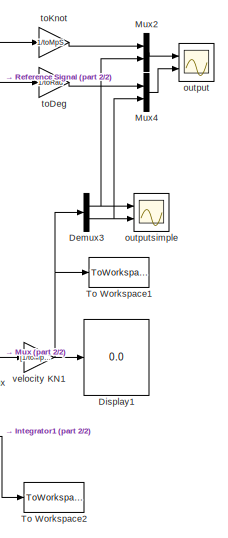
[diagram: root canvas - part 1/2, right side, full height]
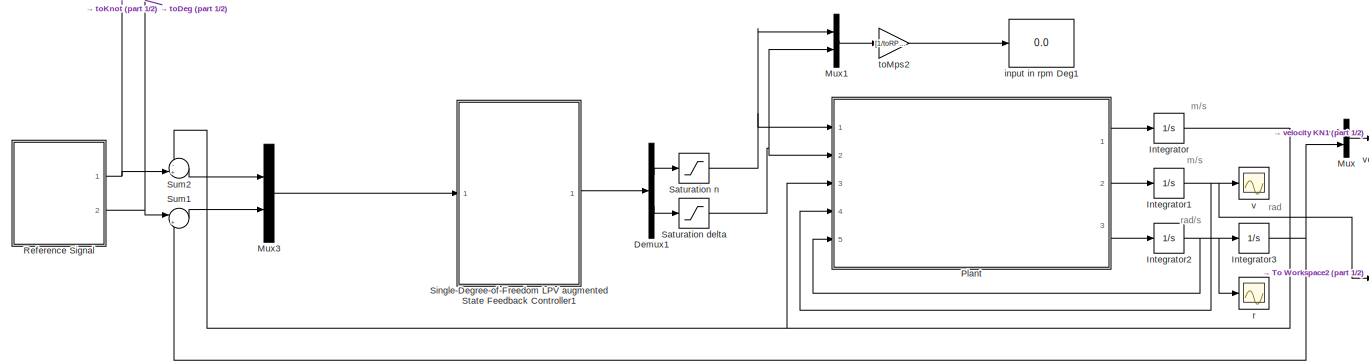
[diagram: root canvas - part 2/2, full width, bottom band]
MODEL slx_d1ff3ff3838d
KIND model
CONFIG AbsTol = auto
CONFIG EnableMultiTasking = off
CONFIG FixedStep = 0.1
CONFIG MaxStep = auto
CONFIG MinStep = auto
CONFIG PostLoadFcn = load Classic_data_2017-11-06_16-06.mat\nload Trajectory_data_Cux_Visby.rtz2017-11-16_14-55.mat
CONFIG RelTol = 1e-3
CONFIG SampleTimeConstraint = Unconstrained
CONFIG Solver = FixedStepAuto
CONFIG SolverName = FixedStepAuto
CONFIG StartTime = 0.0
CONFIG StopTime = time(end)
BLOCK [Demux] Demux1
  DisplayOption = bar
  Outputs = 2
  Ports = [1, 2]
BLOCK [Demux] Demux3
  DisplayOption = bar
  Outputs = 2
  Ports = [1, 2]
BLOCK [Display] Display1
  Decimation = 1
  Ports = [1]
BLOCK [Integrator] Integrator
  InitialCondition = 0.1*toMpS
  LowerSaturationLimit = 1e-1*toMpS
  Ports = [1, 1]
  UpperSaturationLimit = 16*toMpS
BLOCK [Integrator] Integrator1
  LowerSaturationLimit = -0.001*toMpS
  Ports = [1, 1]
  UpperSaturationLimit = 0*toMpS
BLOCK [Integrator] Integrator2
  Ports = [1, 1]
BLOCK [Integrator] Integrator3
  Ports = [1, 1]
  WrapState = on
  WrappedStateLowerValue = -180*toRad
  WrappedStateUpperValue = 180*toRad
BLOCK [Mux] Mux
  DisplayOption = bar
  Inputs = 2
  Ports = [2, 1]
BLOCK [Mux] Mux1
  DisplayOption = bar
  Inputs = 2
  Ports = [2, 1]
BLOCK [Mux] Mux2
  DisplayOption = bar
  Inputs = 2
  Ports = [2, 1]
BLOCK [Mux] Mux3
  DisplayOption = bar
  Inputs = 2
  Ports = [2, 1]
BLOCK [Mux] Mux4
  DisplayOption = bar
  Inputs = 2
  Ports = [2, 1]
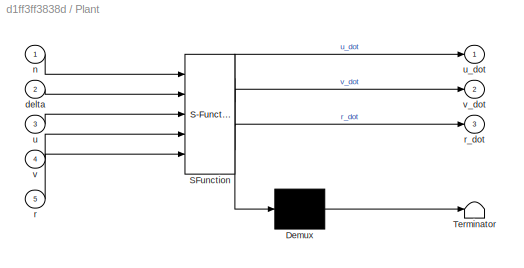
BLOCK [SubSystem] Plant
  ErrorFcn = Stateflow.Translate.translate
  PermitHierarchicalResolution = ExplicitOnly
  Ports = [5, 3]
  RequestExecContextInheritance = off
  SFBlockType = MATLAB Function
  TreatAsAtomicUnit = on
  Variant = off
BLOCK [Demux] Plant/ Demux 
  Outputs = 1
  Ports = [1, 1]
BLOCK [S-Function] Plant/ SFunction 
  EnableBusSupport = on
  FunctionName = sf_sfun
  PortCounts = [5 4]
  Ports = [5, 4]
  SFcnIsStateOwnerBlock = off
  SFunctionDeploymentMode = off
  Tag = Stateflow S-Function SimClassic 2
BLOCK [Terminator] Plant/ Terminator 
BLOCK [Inport] Plant/delta
  IconDisplay = Port number
  Port = 2
BLOCK [Inport] Plant/n
  IconDisplay = Port number
BLOCK [Inport] Plant/r
  IconDisplay = Port number
  Port = 5
BLOCK [Outport] Plant/r_dot
  IconDisplay = Port number
  Port = 3
BLOCK [Inport] Plant/u
  IconDisplay = Port number
  Port = 3
BLOCK [Outport] Plant/u_dot
  IconDisplay = Port number
BLOCK [Inport] Plant/v
  IconDisplay = Port number
  Port = 4
BLOCK [Outport] Plant/v_dot
  IconDisplay = Port number
  Port = 2
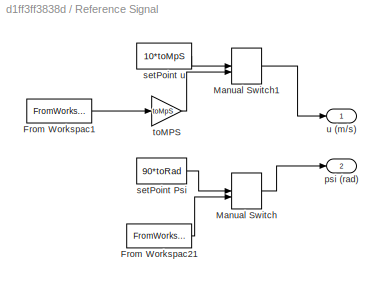
BLOCK [SubSystem] Reference Signal
  Ports = [0, 2]
  RequestExecContextInheritance = off
  Variant = off
BLOCK [FromWorkspace] Reference Signal/From Workspac1
  Interpolate = off
  OutputAfterFinalValue = Holding final value
  SampleTime = 0
  VariableName = [time ref_u]
BLOCK [FromWorkspace] Reference Signal/From Workspac21
  Interpolate = off
  OutputAfterFinalValue = Holding final value
  SampleTime = 0
  VariableName = [time ref_psi]
BLOCK [ManualSwitch] Reference Signal/Manual Switch
BLOCK [ManualSwitch] Reference Signal/Manual Switch1
BLOCK [Outport] Reference Signal/psi (rad)
  IconDisplay = Port number
  Port = 2
BLOCK [Constant] Reference Signal/setPoint Psi
  Value = 90*toRad
BLOCK [Constant] Reference Signal/setPoint u
  Value = 10*toMpS
BLOCK [Gain] Reference Signal/toMPS
  Gain = toMpS
  OutDataTypeStr = Inherit: Inherit via internal rule
  ParamDataTypeStr = Inherit: Inherit via internal rule
  SaturateOnIntegerOverflow = off
BLOCK [Outport] Reference Signal/u (m//s)
  IconDisplay = Port number
BLOCK [Saturate] Saturation delta
  InputPortMap = u0
  LinearizeAsGain = off
  LowerLimit = -30*toRad
  Ports = [1, 1]
  UpperLimit = 30*toRad
BLOCK [Saturate] Saturation n
  InputPortMap = u0
  LinearizeAsGain = off
  LowerLimit = -90*toRPS
  Ports = [1, 1]
  UpperLimit = 90*toRPS
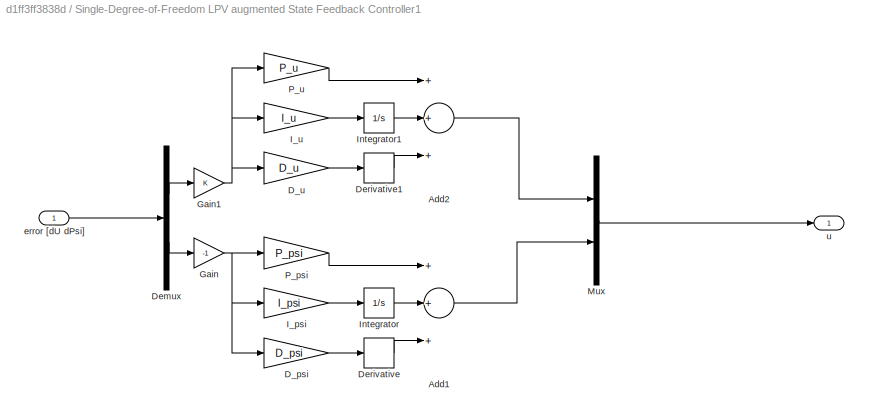
BLOCK [SubSystem] Single-Degree-of-Freedom LPV augmented State Feedback Controller1
  Ports = [1, 1]
  RequestExecContextInheritance = off
  Variant = off
BLOCK [Sum] Single-Degree-of-Freedom LPV augmented State Feedback Controller1/Add1
  InputSameDT = off
  Inputs = +++
  OutDataTypeStr = Inherit: Inherit via internal rule
  Ports = [3, 1]
  SaturateOnIntegerOverflow = off
BLOCK [Sum] Single-Degree-of-Freedom LPV augmented State Feedback Controller1/Add2
  InputSameDT = off
  Inputs = +++
  OutDataTypeStr = Inherit: Inherit via internal rule
  Ports = [3, 1]
  SaturateOnIntegerOverflow = off
BLOCK [Gain] Single-Degree-of-Freedom LPV augmented State Feedback Controller1/D_psi
  Gain = D_psi
  OutDataTypeStr = Inherit: Inherit via internal rule
  ParamDataTypeStr = Inherit: Inherit via internal rule
  SaturateOnIntegerOverflow = off
BLOCK [Gain] Single-Degree-of-Freedom LPV augmented State Feedback Controller1/D_u
  Gain = D_u
  OutDataTypeStr = Inherit: Inherit via internal rule
  ParamDataTypeStr = Inherit: Inherit via internal rule
  SaturateOnIntegerOverflow = off
BLOCK [Demux] Single-Degree-of-Freedom LPV augmented State Feedback Controller1/Demux
  DisplayOption = bar
  Outputs = 2
  Ports = [1, 2]
BLOCK [Derivative] Single-Degree-of-Freedom LPV augmented State Feedback Controller1/Derivative
BLOCK [Derivative] Single-Degree-of-Freedom LPV augmented State Feedback Controller1/Derivative1
BLOCK [Gain] Single-Degree-of-Freedom LPV augmented State Feedback Controller1/Gain
  Gain = -1
  OutDataTypeStr = Inherit: Inherit via internal rule
  ParamDataTypeStr = Inherit: Inherit via internal rule
  SaturateOnIntegerOverflow = off
BLOCK [Gain] Single-Degree-of-Freedom LPV augmented State Feedback Controller1/Gain1
  OutDataTypeStr = Inherit: Inherit via internal rule
  ParamDataTypeStr = Inherit: Inherit via internal rule
  SaturateOnIntegerOverflow = off
BLOCK [Gain] Single-Degree-of-Freedom LPV augmented State Feedback Controller1/I_psi
  Gain = I_psi
  OutDataTypeStr = Inherit: Inherit via internal rule
  ParamDataTypeStr = Inherit: Inherit via internal rule
  SaturateOnIntegerOverflow = off
BLOCK [Gain] Single-Degree-of-Freedom LPV augmented State Feedback Controller1/I_u
  Gain = I_u
  OutDataTypeStr = Inherit: Inherit via internal rule
  ParamDataTypeStr = Inherit: Inherit via internal rule
  SaturateOnIntegerOverflow = off
BLOCK [Integrator] Single-Degree-of-Freedom LPV augmented State Feedback Controller1/Integrator
  Ports = [1, 1]
BLOCK [Integrator] Single-Degree-of-Freedom LPV augmented State Feedback Controller1/Integrator1
  Ports = [1, 1]
BLOCK [Mux] Single-Degree-of-Freedom LPV augmented State Feedback Controller1/Mux
  DisplayOption = bar
  Inputs = 2
  Ports = [2, 1]
BLOCK [Gain] Single-Degree-of-Freedom LPV augmented State Feedback Controller1/P_psi
  Gain = P_psi
  OutDataTypeStr = Inherit: Inherit via internal rule
  ParamDataTypeStr = Inherit: Inherit via internal rule
  SaturateOnIntegerOverflow = off
BLOCK [Gain] Single-Degree-of-Freedom LPV augmented State Feedback Controller1/P_u
  Gain = P_u
  OutDataTypeStr = Inherit: Inherit via internal rule
  ParamDataTypeStr = Inherit: Inherit via internal rule
  SaturateOnIntegerOverflow = off
BLOCK [Inport] Single-Degree-of-Freedom LPV augmented State Feedback Controller1/error [dU dPsi]
  IconDisplay = Port number
BLOCK [Outport] Single-Degree-of-Freedom LPV augmented State Feedback Controller1/u
  IconDisplay = Port number
BLOCK [Sum] Sum1
  IconShape = round
  InputSameDT = off
  Inputs = |+-
  OutDataTypeStr = Inherit: Inherit via internal rule
  Ports = [2, 1]
  SaturateOnIntegerOverflow = off
BLOCK [Sum] Sum2
  IconShape = round
  InputSameDT = off
  Inputs = -+|
  OutDataTypeStr = Inherit: Inherit via internal rule
  Ports = [2, 1]
  SaturateOnIntegerOverflow = off
BLOCK [ToWorkspace] To Workspace1
  FixptAsFi = on
  MaxDataPoints = inf
  Ports = [1]
  SampleTime = -1
  SaveFormat = Timeseries
  VariableName = pid_out
BLOCK [ToWorkspace] To Workspace2
  FixptAsFi = on
  MaxDataPoints = inf
  Ports = [1]
  SampleTime = -1
  SaveFormat = Timeseries
  VariableName = pid_sway
BLOCK [Display] input in rpm Deg1
  Decimation = 1
  Ports = [1]
BLOCK [Scope] output
  NumInputPorts = 2
  Ports = [2]
  ScopeSpecificationString = Simulink.scopes.TimeScopeBlockCfg('CurrentConfiguration', extmgr.ConfigurationSet(extmgr.Configuration('Core','General UI',true,'FigureColor',[1 1 1]),extmgr.Configuration('Core','Source UI',true),extmgr.Configuration('Sources','WiredSimulink',true,'DataLoggingVariableName','ScopeData1'),extmgr.Configuration('Visuals','Time Domain',true,'PlotType','Line','SerializedDisplays',{struct('MinYLimReal',...<+3925ch>
BLOCK [Scope] outputsimple
  NumInputPorts = 2
  Ports = [2]
  ScopeSpecificationString = Simulink.scopes.TimeScopeBlockCfg('CurrentConfiguration', extmgr.ConfigurationSet(extmgr.Configuration('Core','General UI',true,'FigureColor',[1 1 1]),extmgr.Configuration('Core','Source UI',true),extmgr.Configuration('Sources','WiredSimulink',true,'DataLoggingVariableName','ScopeData1'),extmgr.Configuration('Visuals','Time Domain',true,'PlotType','Line','SerializedDisplays',{struct('MinYLimReal',...<+2372ch>
BLOCK [Scope] r
  NumInputPorts = 1
  Ports = [1]
  ScopeSpecificationString = Simulink.scopes.TimeScopeBlockCfg('CurrentConfiguration', extmgr.ConfigurationSet(extmgr.Configuration('Core','General UI',true),extmgr.Configuration('Core','Source UI',true),extmgr.Configuration('Sources','WiredSimulink',true,'DataLoggingVariableName','ScopeData2'),extmgr.Configuration('Visuals','Time Domain',true,'SerializedDisplays',{struct('MinYLimReal','-0.00079','MaxYLimReal','0.0071','YLabe...<+1409ch>
BLOCK [Gain] toDeg
  Gain = 1/toRad
  OutDataTypeStr = Inherit: Inherit via internal rule
  ParamDataTypeStr = Inherit: Inherit via internal rule
  SaturateOnIntegerOverflow = off
BLOCK [Gain] toKnot
  Gain = 1/toMpS
  OutDataTypeStr = Inherit: Inherit via internal rule
  ParamDataTypeStr = Inherit: Inherit via internal rule
  SaturateOnIntegerOverflow = off
BLOCK [Gain] toMps2
  Gain = [1/toRPS 1/toRad]
  OutDataTypeStr = Inherit: Inherit via internal rule
  ParamDataTypeStr = Inherit: Inherit via internal rule
  SaturateOnIntegerOverflow = off
BLOCK [Scope] v
  NumInputPorts = 1
  Ports = [1]
  ScopeSpecificationString = Simulink.scopes.TimeScopeBlockCfg('CurrentConfiguration', extmgr.ConfigurationSet(extmgr.Configuration('Core','General UI',true),extmgr.Configuration('Core','Source UI',true),extmgr.Configuration('Sources','WiredSimulink',true,'DataLoggingVariableName','ScopeData1'),extmgr.Configuration('Visuals','Time Domain',true,'SerializedDisplays',{struct('MinYLimReal','-0.45972','MaxYLimReal','0.05108','YLab...<+1413ch>
BLOCK [Gain] velocity KN1
  Gain = [1/toMpS 1/toRad]
  OutDataTypeStr = Inherit: Inherit via internal rule
  ParamDataTypeStr = Inherit: Inherit via internal rule
  SaturateOnIntegerOverflow = off
ANNOTATION (root): m/s
ANNOTATION (root): rad
ANNOTATION (root): rad/s
LINE Demux1:1 -> Saturation n:1
LINE Demux1:2 -> Saturation delta:1
NET Demux3:1 -> Mux2:2, outputsimple:1
NET Demux3:2 -> Mux4:2, outputsimple:2
NET Integrator1:1 -> Plant:4, To Workspace2:1, v:1
NET Integrator2:1 -> Integrator3:1, Plant:5, r:1
NET Integrator3:1 -> Mux:2, Sum1:2
NET Integrator:1 -> Mux:1, Plant:3, Sum2:1
LINE Mux1:1 -> toMps2:1
LINE Mux2:1 -> output:1
LINE Mux3:1 -> Single-Degree-of-Freedom LPV augmented State Feedback Controller1:1
LINE Mux4:1 -> output:2
LINE Mux:1 -> velocity KN1:1
LINE Plant:1 -> Integrator:1
LINE Plant:2 -> Integrator1:1
LINE Plant:3 -> Integrator2:1
LINE Reference Signal/From Workspac1:1 -> Reference Signal/toMPS:1
LINE Reference Signal/From Workspac21:1 -> Reference Signal/Manual Switch:2
LINE Reference Signal/Manual Switch1:1 -> Reference Signal/u (m//s):1
LINE Reference Signal/Manual Switch:1 -> Reference Signal/psi (rad):1
LINE Reference Signal/setPoint Psi:1 -> Reference Signal/Manual Switch:1
LINE Reference Signal/setPoint u:1 -> Reference Signal/Manual Switch1:1
LINE Reference Signal/toMPS:1 -> Reference Signal/Manual Switch1:2
NET Reference Signal:1 -> Sum2:2, toKnot:1
NET Reference Signal:2 -> Sum1:1, toDeg:1
NET Saturation delta:1 -> Mux1:2, Plant:2
NET Saturation n:1 -> Mux1:1, Plant:1
LINE Single-Degree-of-Freedom LPV augmented State Feedback Controller1/Add1:1 -> Single-Degree-of-Freedom LPV augmented State Feedback Controller1/Mux:2
LINE Single-Degree-of-Freedom LPV augmented State Feedback Controller1/Add2:1 -> Single-Degree-of-Freedom LPV augmented State Feedback Controller1/Mux:1
LINE Single-Degree-of-Freedom LPV augmented State Feedback Controller1/D_psi:1 -> Single-Degree-of-Freedom LPV augmented State Feedback Controller1/Derivative:1
LINE Single-Degree-of-Freedom LPV augmented State Feedback Controller1/D_u:1 -> Single-Degree-of-Freedom LPV augmented State Feedback Controller1/Derivative1:1
LINE Single-Degree-of-Freedom LPV augmented State Feedback Controller1/Demux:1 -> Single-Degree-of-Freedom LPV augmented State Feedback Controller1/Gain1:1
LINE Single-Degree-of-Freedom LPV augmented State Feedback Controller1/Demux:2 -> Single-Degree-of-Freedom LPV augmented State Feedback Controller1/Gain:1
LINE Single-Degree-of-Freedom LPV augmented State Feedback Controller1/Derivative1:1 -> Single-Degree-of-Freedom LPV augmented State Feedback Controller1/Add2:3
LINE Single-Degree-of-Freedom LPV augmented State Feedback Controller1/Derivative:1 -> Single-Degree-of-Freedom LPV augmented State Feedback Controller1/Add1:3
NET Single-Degree-of-Freedom LPV augmented State Feedback Controller1/Gain1:1 -> Single-Degree-of-Freedom LPV augmented State Feedback Controller1/D_u:1, Single-Degree-of-Freedom LPV augmented State Feedback Controller1/I_u:1, Single-Degree-of-Freedom LPV augmented State Feedback Controller1/P_u:1
NET Single-Degree-of-Freedom LPV augmented State Feedback Controller1/Gain:1 -> Single-Degree-of-Freedom LPV augmented State Feedback Controller1/D_psi:1, Single-Degree-of-Freedom LPV augmented State Feedback Controller1/I_psi:1, Single-Degree-of-Freedom LPV augmented State Feedback Controller1/P_psi:1
LINE Single-Degree-of-Freedom LPV augmented State Feedback Controller1/I_psi:1 -> Single-Degree-of-Freedom LPV augmented State Feedback Controller1/Integrator:1
LINE Single-Degree-of-Freedom LPV augmented State Feedback Controller1/I_u:1 -> Single-Degree-of-Freedom LPV augmented State Feedback Controller1/Integrator1:1
LINE Single-Degree-of-Freedom LPV augmented State Feedback Controller1/Integrator1:1 -> Single-Degree-of-Freedom LPV augmented State Feedback Controller1/Add2:2
LINE Single-Degree-of-Freedom LPV augmented State Feedback Controller1/Integrator:1 -> Single-Degree-of-Freedom LPV augmented State Feedback Controller1/Add1:2
LINE Single-Degree-of-Freedom LPV augmented State Feedback Controller1/Mux:1 -> Single-Degree-of-Freedom LPV augmented State Feedback Controller1/u:1
LINE Single-Degree-of-Freedom LPV augmented State Feedback Controller1/P_psi:1 -> Single-Degree-of-Freedom LPV augmented State Feedback Controller1/Add1:1
LINE Single-Degree-of-Freedom LPV augmented State Feedback Controller1/P_u:1 -> Single-Degree-of-Freedom LPV augmented State Feedback Controller1/Add2:1
LINE Single-Degree-of-Freedom LPV augmented State Feedback Controller1/error [dU dPsi]:1 -> Single-Degree-of-Freedom LPV augmented State Feedback Controller1/Demux:1
LINE Single-Degree-of-Freedom LPV augmented State Feedback Controller1:1 -> Demux1:1
LINE Sum1:1 -> Mux3:2
LINE Sum2:1 -> Mux3:1
LINE toDeg:1 -> Mux4:1
LINE toKnot:1 -> Mux2:1
LINE toMps2:1 -> input in rpm Deg1:1
NET velocity KN1:1 -> Demux3:1, Display1:1, To Workspace1:1
note: NET lines group one-source signal fan-out (src -> all destinations, sorted); 1:1 wires keep LINE
CHART Plant states=1 transitions=1
  STATE_LABEL 'eML_blk_kernel()'
  STATE_LABEL 'SCRIPT:\nfunction [u_dot,v_dot,r_dot] = fcn(n,delta,u,v,r)\n% n = n/60;\nif (u==0)\n    u = 1e-5;\nend\n% Normalization variables\nL   =  304.8;          % length of ship (m)\ng   =  9.8;            % acceleration of gravity (m/s^2)\n\n% Parameters, hydrodynamic derivatives and main dimensions\n% delta_max  = 10;       % max rudder angle      (deg)\n% Ddelta_max = 2.33;     % max rudder derivative (deg/s)\n% n...<+2631ch>'
